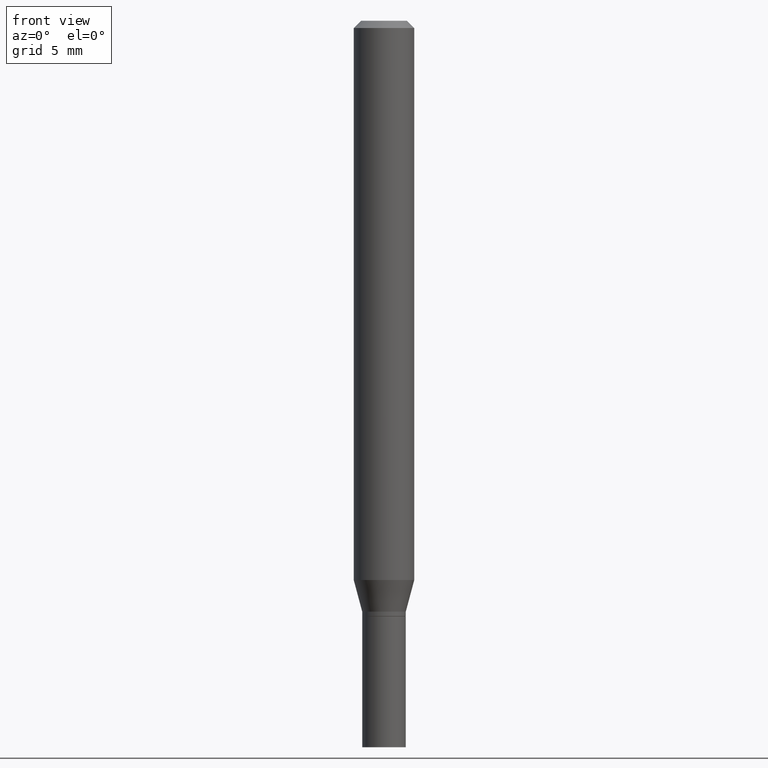
[diagram: clean part render]
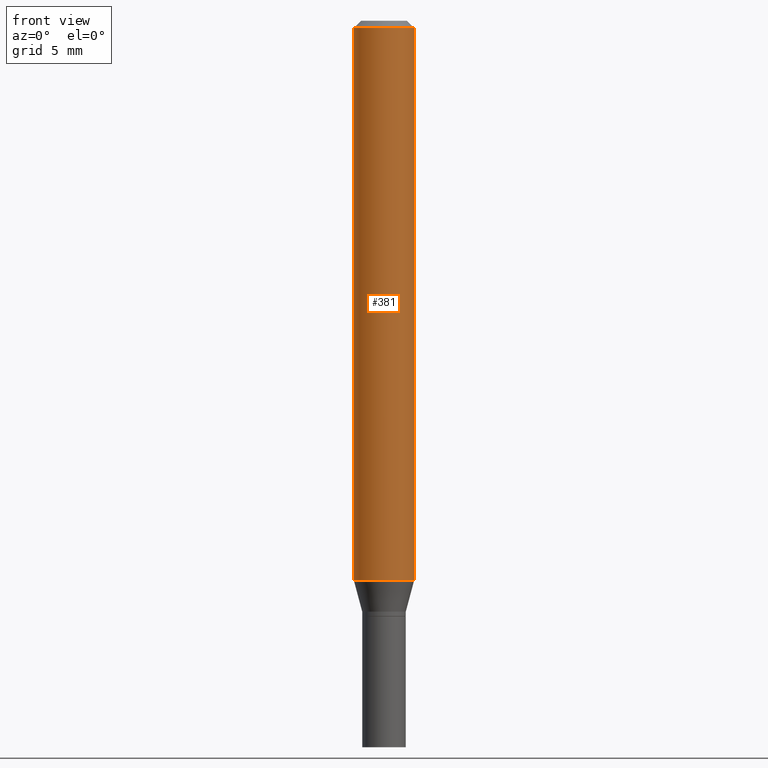
[diagram: same view with one face highlighted and labeled with its STEP entity id]
A machine part, front view. The second image highlights one B-rep face of the part: STEP entity #381.
In plain terms, the highlighted cylindrical surface (edge-blend (fillet) strip) has radius 1.5875 mm, axis along (-0, 0, 1).
Its self-contained STEP definition (entity closure, byte-faithful):
#27 = VERTEX_POINT ( 'NONE', #202 ) ;
#29 = DIRECTION ( 'NONE',  ( 1.000000000000000000, -6.982962677686266711E-15, 4.876176775795935793E-29 ) ) ;
#40 = CARTESIAN_POINT ( 'NONE',  ( 3.668203209277705088E-31, -5.237222008264718399E-17, -0.01499999999999999944 ) ) ;
#62 = AXIS2_PLACEMENT_3D ( 'NONE', #40, #260, #185 ) ;
#77 = DIRECTION ( 'NONE',  ( -2.445468806185136597E-29, 3.491481338843145583E-15, 1.000000000000000000 ) ) ;
#80 = ORIENTED_EDGE ( 'NONE', *, *, #360, .T. ) ;
#82 = DIRECTION ( 'NONE',  ( -2.445468806185136877E-29, 3.491481338843145188E-15, 1.000000000000000000 ) ) ;
#90 = ORIENTED_EDGE ( 'NONE', *, *, #446, .F. ) ;
#103 = AXIS2_PLACEMENT_3D ( 'NONE', #292, #77, #104 ) ;
#104 = DIRECTION ( 'NONE',  ( 1.000000000000000000, -6.982962677686270655E-15, 0.000000000000000000 ) ) ;
#121 = CIRCLE ( 'NONE', #62, 0.06250000000000000000 ) ;
#122 = LINE ( 'NONE', #270, #303 ) ;
#141 = CARTESIAN_POINT ( 'NONE',  ( 0.06250000000000000000, -4.888073874380388472E-16, -0.01499999999999999944 ) ) ;
#148 = CARTESIAN_POINT ( 'NONE',  ( 0.06250000000000000000, -4.364351673553916694E-16, 3.047610484872459871E-30 ) ) ;
#160 = CIRCLE ( 'NONE', #103, 0.06250000000000000000 ) ;
#185 = DIRECTION ( 'NONE',  ( 1.000000000000000000, -6.982962677686266711E-15, 0.000000000000000000 ) ) ;
#194 = ORIENTED_EDGE ( 'NONE', *, *, #262, .F. ) ;
#202 = CARTESIAN_POINT ( 'NONE',  ( -0.06250000000000000000, -1.597884641570970340E-15, -0.01499999999999999944 ) ) ;
#203 = VERTEX_POINT ( 'NONE', #257 ) ;
#225 = LINE ( 'NONE', #148, #356 ) ;
#235 = VERTEX_POINT ( 'NONE', #141 ) ;
#254 = FACE_OUTER_BOUND ( 'NONE', #287, .T. ) ;
#257 = CARTESIAN_POINT ( 'NONE',  ( -0.06250000000000000000, -3.587486272909356218E-15, -1.154689110867545443 ) ) ;
#260 = DIRECTION ( 'NONE',  ( -2.445468806185136597E-29, 3.491481338843145583E-15, 1.000000000000000000 ) ) ;
#262 = EDGE_CURVE ( 'NONE', #27, #235, #121, .T. ) ;
#270 = CARTESIAN_POINT ( 'NONE',  ( -0.06250000000000000000, 4.440892098500626162E-16, -3.074334431409316114E-30 ) ) ;
#274 = AXIS2_PLACEMENT_3D ( 'NONE', #436, #431, #29 ) ;
#287 = EDGE_LOOP ( 'NONE', ( #90, #302, #80, #194 ) ) ;
#292 = CARTESIAN_POINT ( 'NONE',  ( 2.823756201468233313E-29, -4.031575482759418834E-15, -1.154689110867545443 ) ) ;
#302 = ORIENTED_EDGE ( 'NONE', *, *, #315, .T. ) ;
#303 = VECTOR ( 'NONE', #82, 39.37007874015748143 ) ;
#315 = EDGE_CURVE ( 'NONE', #203, #454, #160, .T. ) ;
#333 = CARTESIAN_POINT ( 'NONE',  ( 0.06250000000000000000, -4.468010650114809714E-15, -1.154689110867545443 ) ) ;
#356 = VECTOR ( 'NONE', #369, 39.37007874015748143 ) ;
#360 = EDGE_CURVE ( 'NONE', #454, #235, #225, .T. ) ;
#369 = DIRECTION ( 'NONE',  ( -2.445468806185136877E-29, 3.491481338843145188E-15, 1.000000000000000000 ) ) ;
#381 = ADVANCED_FACE ( 'NONE', ( #254 ), #433, .T. ) ;
#431 = DIRECTION ( 'NONE',  ( -2.445468806185136597E-29, 3.491481338843145583E-15, 1.000000000000000000 ) ) ;
#433 = CYLINDRICAL_SURFACE ( 'NONE', #274, 0.06250000000000000000 ) ;
#436 = CARTESIAN_POINT ( 'NONE',  ( 0.000000000000000000, 0.000000000000000000, 0.000000000000000000 ) ) ;
#446 = EDGE_CURVE ( 'NONE', #203, #27, #122, .T. ) ;
#454 = VERTEX_POINT ( 'NONE', #333 ) ;